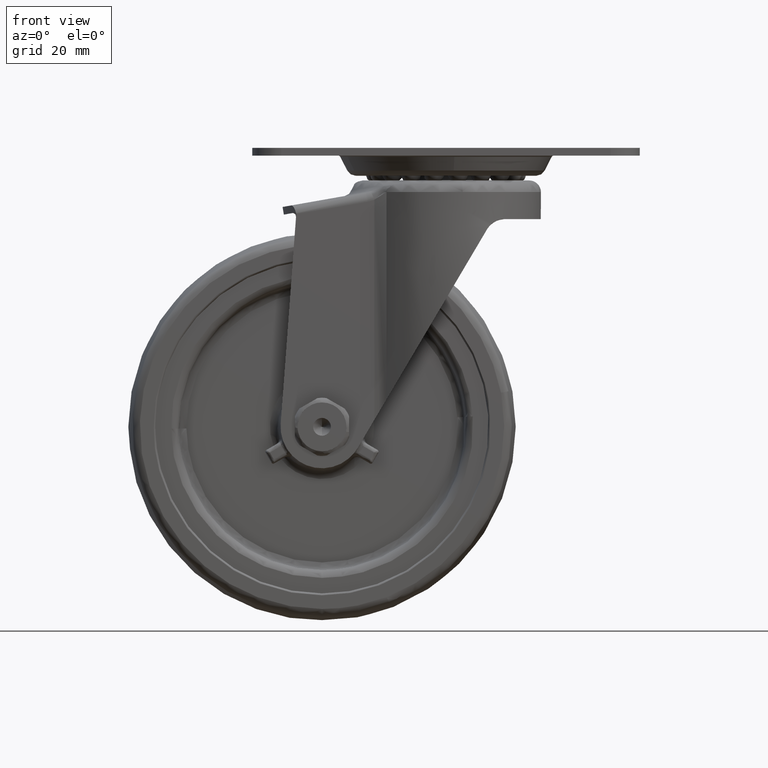
[diagram: clean part render]
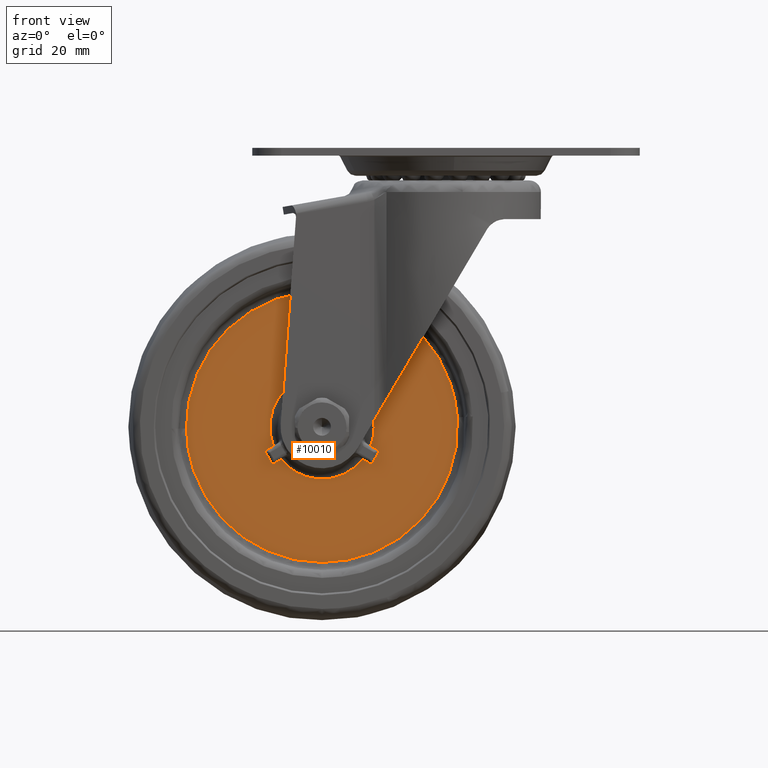
[diagram: same view with one face highlighted and labeled with its STEP entity id]
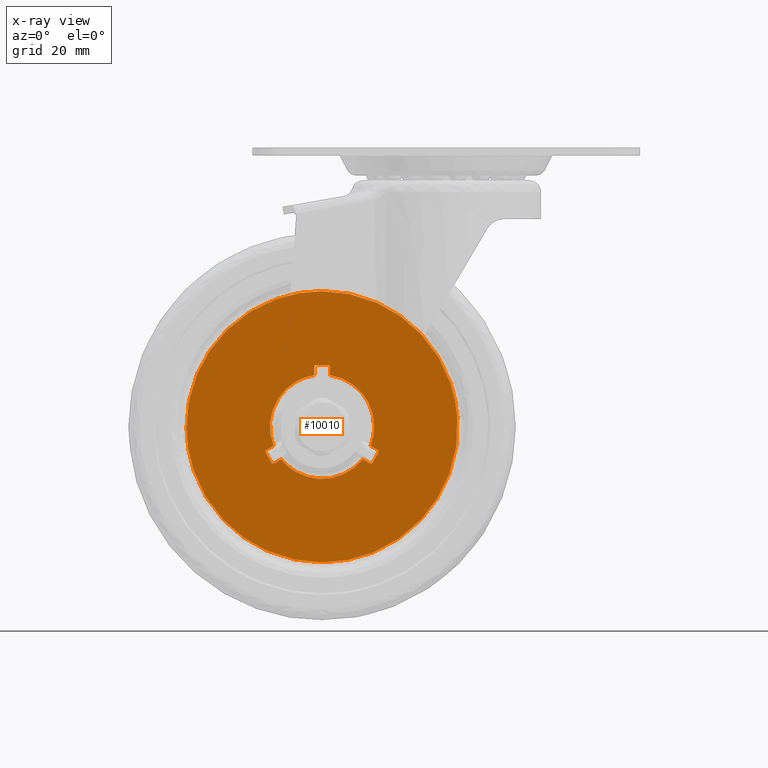
[diagram: x-ray of the same camera — body ghosted, the highlighted face saturated]
A machine part, front view. The second image highlights one B-rep face of the part: STEP entity #10010.
The next image is the same camera in x-ray: the body ghosted, the highlighted face saturated — about 0% of this face is hidden behind the body in this view.
In plain terms, the highlighted face is a freeform B-spline surface patch.
Its self-contained STEP definition (entity closure, byte-faithful):
#3318=CARTESIAN_POINT('',(2.914197055901172,-7.500000000000000,-67.559378243715869));
#3319=VERTEX_POINT('',#3318);
#3333=CARTESIAN_POINT('',(-32.0,-7.500000000000000,-104.999397000000000));
#3334=VERTEX_POINT('',#3333);
#3335=CARTESIAN_POINT('',(2.914197055901172,-7.500000000000000,-67.559378243715869));
#3336=CARTESIAN_POINT('',(2.999397000000000,-7.500000000000000,-68.778201994538435));
#3337=CARTESIAN_POINT('',(2.999397000000001,-7.500000000000000,-70.0));
#3338=CARTESIAN_POINT('',(2.999397000000001,-7.500000000000000,-104.999396999999990));
#3339=CARTESIAN_POINT('',(-32.0,-7.500000000000000,-104.999397000000000));
#3347=(BOUNDED_CURVE()B_SPLINE_CURVE(2,(#3335,#3336,#3337,#3338,#3339),.UNSPECIFIED.,.F.,.U.)B_SPLINE_CURVE_WITH_KNOTS((3,2,3),(0.237833686534707,0.250000000000000,0.500000000000000),.UNSPECIFIED.)CURVE()GEOMETRIC_REPRESENTATION_ITEM()RATIONAL_B_SPLINE_CURVE((0.972879876386163,0.985746277152228,1.0,0.707106781186548,1.0))REPRESENTATION_ITEM(''));
#3348=EDGE_CURVE('',#3319,#3334,#3347,.T.);
#3350=CARTESIAN_POINT('',(-66.996633613394039,-7.500000000000001,-70.439803819406421));
#3351=VERTEX_POINT('',#3350);
#3352=CARTESIAN_POINT('',(-32.0,-7.500000000000000,-104.999397000000000));
#3353=CARTESIAN_POINT('',(-66.562322075923007,-7.500000000000000,-104.999397000000000));
#3354=CARTESIAN_POINT('',(-66.996633613394039,-7.500000000000001,-70.439803819406421));
#3362=(BOUNDED_CURVE()B_SPLINE_CURVE(2,(#3352,#3353,#3354),.UNSPECIFIED.,.F.,.U.)B_SPLINE_CURVE_WITH_KNOTS((3,3),(0.500000000000000,0.747784295915932),.UNSPECIFIED.)CURVE()GEOMETRIC_REPRESENTATION_ITEM()RATIONAL_B_SPLINE_CURVE((1.0,0.709702639991031,0.994854295630671))REPRESENTATION_ITEM(''));
#3363=EDGE_CURVE('',#3334,#3351,#3362,.T.);
#3410=CARTESIAN_POINT('',(-32.0,-7.500000000000000,-35.000603000000012));
#3411=VERTEX_POINT('',#3410);
#3412=CARTESIAN_POINT('',(-66.996633613394039,-7.500000000000001,-70.439803819406421));
#3413=CARTESIAN_POINT('',(-66.999397000000002,-7.500000000000000,-70.219910591482261));
#3414=CARTESIAN_POINT('',(-66.999397000000002,-7.500000000000000,-70.0));
#3415=CARTESIAN_POINT('',(-66.999397000000016,-7.500000000000000,-35.000602999999998));
#3416=CARTESIAN_POINT('',(-32.0,-7.500000000000000,-35.000603000000012));
#3424=(BOUNDED_CURVE()B_SPLINE_CURVE(2,(#3412,#3413,#3414,#3415,#3416),.UNSPECIFIED.,.F.,.U.)B_SPLINE_CURVE_WITH_KNOTS((3,2,3),(0.747784295915932,0.750000000000000,1.0),.UNSPECIFIED.)CURVE()GEOMETRIC_REPRESENTATION_ITEM()RATIONAL_B_SPLINE_CURVE((0.994854295630673,0.997404141195517,1.0,0.707106781186548,1.0))REPRESENTATION_ITEM(''));
#3425=EDGE_CURVE('',#3351,#3411,#3424,.T.);
#3427=CARTESIAN_POINT('',(-32.0,-7.500000000000000,-35.000603000000012));
#3428=CARTESIAN_POINT('',(0.638227334531516,-7.500000000000002,-35.000603000000005));
#3429=CARTESIAN_POINT('',(2.914197055901173,-7.500000000000000,-67.559378243715869));
#3437=(BOUNDED_CURVE()B_SPLINE_CURVE(2,(#3427,#3428,#3429),.UNSPECIFIED.,.F.,.U.)B_SPLINE_CURVE_WITH_KNOTS((3,3),(0.0,0.237833686534707),.UNSPECIFIED.)CURVE()GEOMETRIC_REPRESENTATION_ITEM()RATIONAL_B_SPLINE_CURVE((1.0,0.721360504034320,0.972879876386163))REPRESENTATION_ITEM(''));
#3438=EDGE_CURVE('',#3411,#3319,#3437,.T.);
#8599=CARTESIAN_POINT('',(-42.534751248458953,-7.500000000000000,-78.391642806324086));
#8600=VERTEX_POINT('',#8599);
#8617=CARTESIAN_POINT('',(-44.360388596062201,-7.500000000000000,-79.445675734139400));
#8618=VERTEX_POINT('',#8617);
#8624=CARTESIAN_POINT('',(-42.534751248458953,-7.500000000000000,-78.391642806324086));
#8625=CARTESIAN_POINT('',(-44.360388596062201,-7.500000000000000,-79.445675734139400));
#8626=QUASI_UNIFORM_CURVE('',1,(#8624,#8625),.UNSPECIFIED.,.F.,.U.);
#8627=EDGE_CURVE('',#8600,#8618,#8626,.T.);
#8639=CARTESIAN_POINT('',(-44.534751579480293,-7.500000000000000,-74.927540532208312));
#8640=VERTEX_POINT('',#8639);
#8652=CARTESIAN_POINT('',(-46.360389294386003,-7.500000000000000,-75.981573692900895));
#8653=VERTEX_POINT('',#8652);
#8654=CARTESIAN_POINT('',(-46.360389294386003,-7.500000000000000,-75.981573692900895));
#8655=CARTESIAN_POINT('',(-44.534751579480293,-7.500000000000000,-74.927540532208312));
#8656=QUASI_UNIFORM_CURVE('',1,(#8654,#8655),.UNSPECIFIED.,.F.,.U.);
#8657=EDGE_CURVE('',#8653,#8640,#8656,.T.);
#8681=CARTESIAN_POINT('',(-46.565563007709287,-7.500000000000000,-76.621508458685994));
#8682=VERTEX_POINT('',#8681);
#8690=CARTESIAN_POINT('',(-46.360389294385982,-7.500000000000000,-75.981573692900923));
#8691=CARTESIAN_POINT('',(-46.753341733993729,-7.500000000000000,-76.208445047792466));
#8692=CARTESIAN_POINT('',(-46.565563007709251,-7.500000000000000,-76.621508458685980));
#8700=(BOUNDED_CURVE()B_SPLINE_CURVE(2,(#8690,#8691,#8692),.UNSPECIFIED.,.F.,.U.)CURVE()GEOMETRIC_REPRESENTATION_ITEM()QUASI_UNIFORM_CURVE()RATIONAL_B_SPLINE_CURVE((1.0,0.740531729840645,1.0))REPRESENTATION_ITEM(''));
#8701=EDGE_CURVE('',#8653,#8682,#8700,.T.);
#8720=CARTESIAN_POINT('',(-45.017175456027999,-7.500000000000000,-79.303394173471389));
#8721=VERTEX_POINT('',#8720);
#8729=CARTESIAN_POINT('',(-46.565563007709301,-7.500000000000000,-76.621508458686009));
#8730=CARTESIAN_POINT('',(-45.921749886360708,-7.500000000000000,-78.037726627507013));
#8731=CARTESIAN_POINT('',(-45.017175456028028,-7.500000000000000,-79.303394173471403));
#8739=(BOUNDED_CURVE()B_SPLINE_CURVE(2,(#8729,#8730,#8731),.UNSPECIFIED.,.F.,.U.)CURVE()GEOMETRIC_REPRESENTATION_ITEM()QUASI_UNIFORM_CURVE()RATIONAL_B_SPLINE_CURVE((1.0,0.995306360363044,1.0))REPRESENTATION_ITEM(''));
#8740=EDGE_CURVE('',#8682,#8721,#8739,.T.);
#8762=CARTESIAN_POINT('',(-45.017175456027992,-7.500000000000000,-79.303394173471375));
#8763=CARTESIAN_POINT('',(-44.753341247709351,-7.499999999999999,-79.672547206971686));
#8764=CARTESIAN_POINT('',(-44.360388596062208,-7.500000000000000,-79.445675734139385));
#8772=(BOUNDED_CURVE()B_SPLINE_CURVE(2,(#8762,#8763,#8764),.UNSPECIFIED.,.F.,.U.)CURVE()GEOMETRIC_REPRESENTATION_ITEM()QUASI_UNIFORM_CURVE()RATIONAL_B_SPLINE_CURVE((1.0,0.740531551029515,1.0))REPRESENTATION_ITEM(''));
#8773=EDGE_CURVE('',#8721,#8618,#8772,.T.);
#8993=CARTESIAN_POINT('',(-34.000000225532247,-7.500000000000000,-56.680816393122498));
#8994=VERTEX_POINT('',#8993);
#9008=CARTESIAN_POINT('',(-34.000000843643953,-7.500000000000000,-54.572751608092787));
#9009=VERTEX_POINT('',#9008);
#9015=CARTESIAN_POINT('',(-34.000000225532247,-7.500000000000000,-56.680816393122498));
#9016=CARTESIAN_POINT('',(-34.000000843643953,-7.500000000000000,-54.572751608092787));
#9017=QUASI_UNIFORM_CURVE('',1,(#9015,#9016),.UNSPECIFIED.,.F.,.U.);
#9018=EDGE_CURVE('',#8994,#9009,#9017,.T.);
#9030=CARTESIAN_POINT('',(-29.999999489329749,-7.500000000000000,-56.680816435938702));
#9031=VERTEX_POINT('',#9030);
#9041=CARTESIAN_POINT('',(-30.000000125467899,-7.500000000000000,-54.572751367259102));
#9042=VERTEX_POINT('',#9041);
#9043=CARTESIAN_POINT('',(-30.000000125467899,-7.500000000000000,-54.572751367259102));
#9044=CARTESIAN_POINT('',(-29.999999489329749,-7.500000000000000,-56.680816435938702));
#9045=QUASI_UNIFORM_CURVE('',1,(#9043,#9044),.UNSPECIFIED.,.F.,.U.);
#9046=EDGE_CURVE('',#9042,#9031,#9045,.T.);
#9070=CARTESIAN_POINT('',(-30.451613032741101,-7.500000000000000,-54.075098185557799));
#9071=VERTEX_POINT('',#9070);
#9079=CARTESIAN_POINT('',(-30.000000125467899,-7.500000000000000,-54.572751367259102));
#9080=CARTESIAN_POINT('',(-30.000000125467903,-7.500000000000000,-54.119008757064911));
#9081=CARTESIAN_POINT('',(-30.451613032741101,-7.500000000000000,-54.075098185557778));
#9089=(BOUNDED_CURVE()B_SPLINE_CURVE(2,(#9079,#9080,#9081),.UNSPECIFIED.,.F.,.U.)CURVE()GEOMETRIC_REPRESENTATION_ITEM()QUASI_UNIFORM_CURVE()RATIONAL_B_SPLINE_CURVE((1.0,0.740531628444593,1.0))REPRESENTATION_ITEM(''));
#9090=EDGE_CURVE('',#9042,#9071,#9089,.T.);
#9109=CARTESIAN_POINT('',(-33.548387967632443,-7.500000000000000,-54.075098282824698));
#9110=VERTEX_POINT('',#9109);
#9118=CARTESIAN_POINT('',(-30.451613032741101,-7.500000000000000,-54.075098185557863));
#9119=CARTESIAN_POINT('',(-32.000000504915413,-7.500000000000000,-53.924547619525015));
#9120=CARTESIAN_POINT('',(-33.548387967632429,-7.500000000000000,-54.075098282824769));
#9128=(BOUNDED_CURVE()B_SPLINE_CURVE(2,(#9118,#9119,#9120),.UNSPECIFIED.,.F.,.U.)CURVE()GEOMETRIC_REPRESENTATION_ITEM()QUASI_UNIFORM_CURVE()RATIONAL_B_SPLINE_CURVE((1.0,0.995306360363044,1.0))REPRESENTATION_ITEM(''));
#9129=EDGE_CURVE('',#9071,#9110,#9128,.T.);
#9151=CARTESIAN_POINT('',(-33.548387967632443,-7.500000000000000,-54.075098282824683));
#9152=CARTESIAN_POINT('',(-34.000000976687097,-7.499999999999999,-54.119008892865807));
#9153=CARTESIAN_POINT('',(-34.000000843643917,-7.500000000000000,-54.572751608092787));
#9161=(BOUNDED_CURVE()B_SPLINE_CURVE(2,(#9151,#9152,#9153),.UNSPECIFIED.,.F.,.U.)CURVE()GEOMETRIC_REPRESENTATION_ITEM()QUASI_UNIFORM_CURVE()RATIONAL_B_SPLINE_CURVE((1.0,0.740531551029544,1.0))REPRESENTATION_ITEM(''));
#9162=EDGE_CURVE('',#9110,#9009,#9161,.T.);
#9377=CARTESIAN_POINT('',(-21.465248931189901,-7.500000000000000,-78.391643031852794));
#9378=VERTEX_POINT('',#9377);
#9392=CARTESIAN_POINT('',(-19.639610580146101,-7.500000000000000,-79.445675090721792));
#9393=VERTEX_POINT('',#9392);
#9394=CARTESIAN_POINT('',(-19.639610580146101,-7.500000000000000,-79.445675090721792));
#9395=CARTESIAN_POINT('',(-21.465248931189901,-7.500000000000000,-78.391643031852794));
#9396=QUASI_UNIFORM_CURVE('',1,(#9394,#9395),.UNSPECIFIED.,.F.,.U.);
#9397=EDGE_CURVE('',#9393,#9378,#9396,.T.);
#9412=CARTESIAN_POINT('',(-19.465248526008800,-7.500000000000000,-74.927540800553103));
#9413=VERTEX_POINT('',#9412);
#9430=CARTESIAN_POINT('',(-17.639610560293850,-7.500000000000000,-75.981572657767501));
#9431=VERTEX_POINT('',#9430);
#9437=CARTESIAN_POINT('',(-19.465248526008800,-7.500000000000000,-74.927540800553103));
#9438=CARTESIAN_POINT('',(-17.639610560293850,-7.500000000000000,-75.981572657767501));
#9439=QUASI_UNIFORM_CURVE('',1,(#9437,#9438),.UNSPECIFIED.,.F.,.U.);
#9440=EDGE_CURVE('',#9413,#9431,#9439,.T.);
#9459=CARTESIAN_POINT('',(-18.982823959549648,-7.500000000000000,-79.303393355756000));
#9460=VERTEX_POINT('',#9459);
#9468=CARTESIAN_POINT('',(-19.639610580146091,-7.500000000000000,-79.445675090721778));
#9469=CARTESIAN_POINT('',(-19.246658003615085,-7.500000000000000,-79.672546208455501));
#9470=CARTESIAN_POINT('',(-18.982823959549680,-7.500000000000000,-79.303393355755972));
#9478=(BOUNDED_CURVE()B_SPLINE_CURVE(2,(#9468,#9469,#9470),.UNSPECIFIED.,.F.,.U.)CURVE()GEOMETRIC_REPRESENTATION_ITEM()QUASI_UNIFORM_CURVE()RATIONAL_B_SPLINE_CURVE((1.0,0.740531729840565,1.0))REPRESENTATION_ITEM(''));
#9479=EDGE_CURVE('',#9393,#9460,#9478,.T.);
#9498=CARTESIAN_POINT('',(-17.434436576339600,-7.500000000000000,-76.621507543703700));
#9499=VERTEX_POINT('',#9498);
#9507=CARTESIAN_POINT('',(-18.982823959549631,-7.500000000000000,-79.303393355756015));
#9508=CARTESIAN_POINT('',(-18.078249608723890,-7.500000000000000,-78.037725752967873));
#9509=CARTESIAN_POINT('',(-17.434436576339561,-7.500000000000000,-76.621507543703729));
#9517=(BOUNDED_CURVE()B_SPLINE_CURVE(2,(#9507,#9508,#9509),.UNSPECIFIED.,.F.,.U.)CURVE()GEOMETRIC_REPRESENTATION_ITEM()QUASI_UNIFORM_CURVE()RATIONAL_B_SPLINE_CURVE((1.0,0.995306360363044,1.0))REPRESENTATION_ITEM(''));
#9518=EDGE_CURVE('',#9460,#9499,#9517,.T.);
#9540=CARTESIAN_POINT('',(-17.434436576339600,-7.500000000000000,-76.621507543703700));
#9541=CARTESIAN_POINT('',(-17.246657775603492,-7.500000000000003,-76.208443900162237));
#9542=CARTESIAN_POINT('',(-17.639610560293839,-7.500000000000000,-75.981572657767487));
#9550=(BOUNDED_CURVE()B_SPLINE_CURVE(2,(#9540,#9541,#9542),.UNSPECIFIED.,.F.,.U.)CURVE()GEOMETRIC_REPRESENTATION_ITEM()QUASI_UNIFORM_CURVE()RATIONAL_B_SPLINE_CURVE((1.0,0.740531551029495,1.0))REPRESENTATION_ITEM(''));
#9551=EDGE_CURVE('',#9499,#9431,#9550,.T.);
#9937=CARTESIAN_POINT('',(-70.492737797871243,-7.500000000000000,-108.495837281727400));
#9938=CARTESIAN_POINT('',(-70.492737797871243,-7.500000000000000,-31.504161466596681));
#9939=CARTESIAN_POINT('',(6.491509589978685,-7.500000000000000,-108.495837281727400));
#9940=CARTESIAN_POINT('',(6.491509589978685,-7.500000000000000,-31.504161466596681));
#9941=B_SPLINE_SURFACE_WITH_KNOTS('',1,1,((#9937,#9939),(#9938,#9940)),.UNSPECIFIED.,.F.,.F.,.U.,(2,2),(2,2),(0.0,76.991675815130662),(0.0,76.984247387849933),.UNSPECIFIED.);
#9942=ORIENTED_EDGE('',*,*,#3425,.F.);
#9943=ORIENTED_EDGE('',*,*,#3363,.F.);
#9944=ORIENTED_EDGE('',*,*,#3348,.F.);
#9945=ORIENTED_EDGE('',*,*,#3438,.F.);
#9946=EDGE_LOOP('',(#9942,#9943,#9944,#9945));
#9947=FACE_OUTER_BOUND('',#9946,.T.);
#9948=CARTESIAN_POINT('',(-44.534751579480329,-7.500000000000000,-74.927540532208326));
#9949=CARTESIAN_POINT('',(-46.909411222130565,-7.500000000000001,-68.886845684164427));
#9950=CARTESIAN_POINT('',(-43.664068242268748,-7.500000000000000,-63.265746894009837));
#9951=CARTESIAN_POINT('',(-40.418725262406923,-7.500000000000001,-57.644648103855253));
#9952=CARTESIAN_POINT('',(-34.000000225532233,-7.500000000000000,-56.680816393122612));
#9960=(BOUNDED_CURVE()B_SPLINE_CURVE(2,(#9948,#9949,#9950,#9951,#9952),.UNSPECIFIED.,.F.,.U.)B_SPLINE_CURVE_WITH_KNOTS((3,2,3),(0.0,0.500000000000000,1.0),.UNSPECIFIED.)CURVE()GEOMETRIC_REPRESENTATION_ITEM()RATIONAL_B_SPLINE_CURVE((1.0,0.900848684017576,1.0,0.900848684017576,1.0))REPRESENTATION_ITEM(''));
#9961=EDGE_CURVE('',#8640,#8994,#9960,.T.);
#9962=ORIENTED_EDGE('',*,*,#9961,.T.);
#9963=ORIENTED_EDGE('',*,*,#9018,.T.);
#9964=ORIENTED_EDGE('',*,*,#9162,.F.);
#9965=ORIENTED_EDGE('',*,*,#9129,.F.);
#9966=ORIENTED_EDGE('',*,*,#9090,.F.);
#9967=ORIENTED_EDGE('',*,*,#9046,.T.);
#9968=CARTESIAN_POINT('',(-29.999999489329760,-7.500000000000000,-56.680816435938773));
#9969=CARTESIAN_POINT('',(-23.581274473088868,-7.500000000000000,-57.644648284083921));
#9970=CARTESIAN_POINT('',(-20.335931613563918,-7.500000000000000,-63.265747143715011));
#9971=CARTESIAN_POINT('',(-17.090588754038965,-7.500000000000000,-68.886846003346108));
#9972=CARTESIAN_POINT('',(-19.465248526008779,-7.500000000000000,-74.927540800553103));
#9980=(BOUNDED_CURVE()B_SPLINE_CURVE(2,(#9968,#9969,#9970,#9971,#9972),.UNSPECIFIED.,.F.,.U.)B_SPLINE_CURVE_WITH_KNOTS((3,2,3),(0.0,0.500000000000000,1.0),.UNSPECIFIED.)CURVE()GEOMETRIC_REPRESENTATION_ITEM()RATIONAL_B_SPLINE_CURVE((1.0,0.900848684017576,1.0,0.900848684017576,1.0))REPRESENTATION_ITEM(''));
#9981=EDGE_CURVE('',#9031,#9413,#9980,.T.);
#9982=ORIENTED_EDGE('',*,*,#9981,.T.);
#9983=ORIENTED_EDGE('',*,*,#9440,.T.);
#9984=ORIENTED_EDGE('',*,*,#9551,.F.);
#9985=ORIENTED_EDGE('',*,*,#9518,.F.);
#9986=ORIENTED_EDGE('',*,*,#9479,.F.);
#9987=ORIENTED_EDGE('',*,*,#9397,.T.);
#9988=CARTESIAN_POINT('',(-21.465248931189858,-7.500000000000000,-78.391643031852823));
#9989=CARTESIAN_POINT('',(-25.509314304780517,-7.500000000000001,-83.468506031751659));
#9990=CARTESIAN_POINT('',(-32.000000144167352,-7.500000000000000,-83.468505962275117));
#9991=CARTESIAN_POINT('',(-38.490685983554187,-7.500000000000001,-83.468505892798603));
#9992=CARTESIAN_POINT('',(-42.534751248459010,-7.500000000000000,-78.391642806324143));
#10000=(BOUNDED_CURVE()B_SPLINE_CURVE(2,(#9988,#9989,#9990,#9991,#9992),.UNSPECIFIED.,.F.,.U.)B_SPLINE_CURVE_WITH_KNOTS((3,2,3),(0.0,0.500000000000000,1.0),.UNSPECIFIED.)CURVE()GEOMETRIC_REPRESENTATION_ITEM()RATIONAL_B_SPLINE_CURVE((1.0,0.900848684017574,1.0,0.900848684017574,1.0))REPRESENTATION_ITEM(''));
#10001=EDGE_CURVE('',#9378,#8600,#10000,.T.);
#10002=ORIENTED_EDGE('',*,*,#10001,.T.);
#10003=ORIENTED_EDGE('',*,*,#8627,.T.);
#10004=ORIENTED_EDGE('',*,*,#8773,.F.);
#10005=ORIENTED_EDGE('',*,*,#8740,.F.);
#10006=ORIENTED_EDGE('',*,*,#8701,.F.);
#10007=ORIENTED_EDGE('',*,*,#8657,.T.);
#10008=EDGE_LOOP('',(#9962,#9963,#9964,#9965,#9966,#9967,#9982,#9983,#9984,#9985,#9986,#9987,#10002,#10003,#10004,#10005,#10006,#10007));
#10009=FACE_BOUND('',#10008,.T.);
#10010=ADVANCED_FACE('',(#9947,#10009),#9941,.F.);